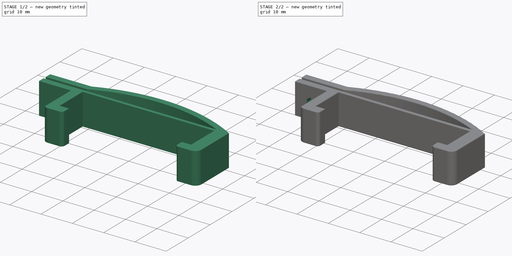
[diagram: build sequence overview — one tinted view per stage of 2, left to right]
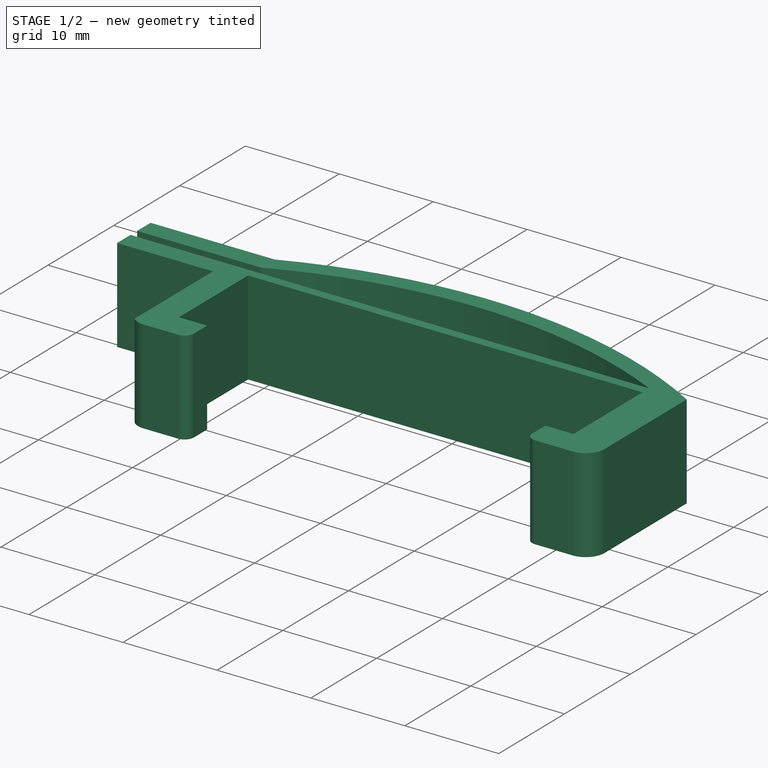
[diagram: stage 1 of 2 — iso view after this stage's code; geometry added in this stage tinted green]
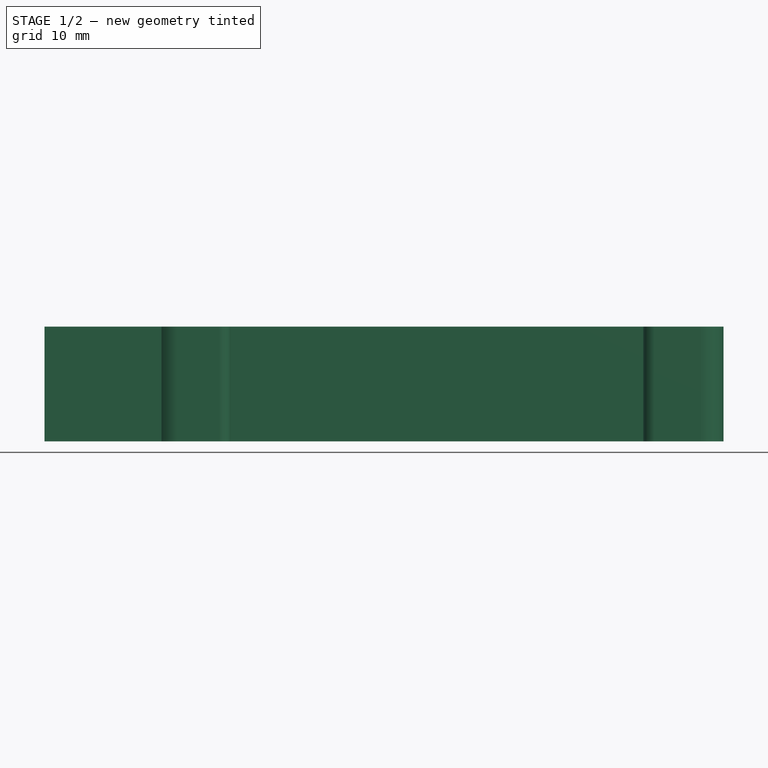
[diagram: stage 1 of 2 — front view after this stage's code; geometry added in this stage tinted green]
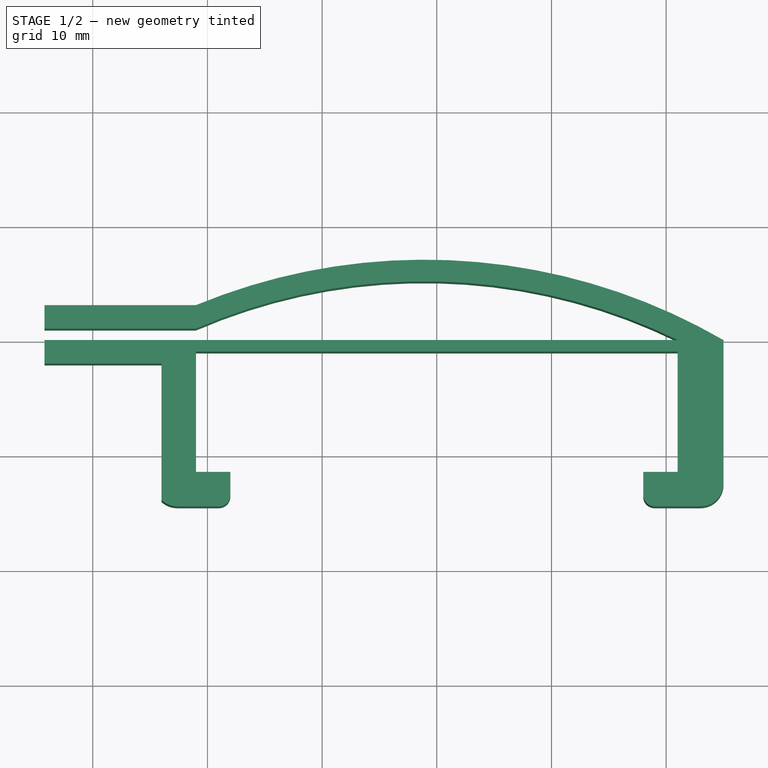
[diagram: stage 1 of 2 — top view after this stage's code; geometry added in this stage tinted green]
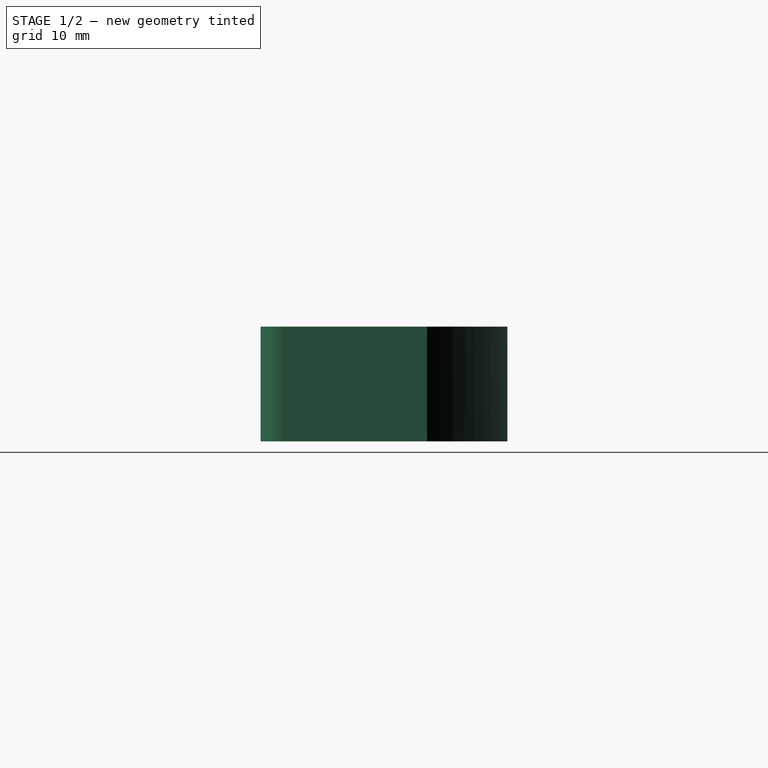
[diagram: stage 1 of 2 — right view after this stage's code; geometry added in this stage tinted green]
FCSTD DOCUMENT  (FreeCAD 0.20R27319 (Git))
Label: Friction Plate V2
License: All rights reserved
LicenseURL: http://en.wikipedia.org/wiki/All_rights_reserved
objects: Sketcher::SketchObject×3, PartDesign::Pocket×2, PartDesign::Pad×1, PartDesign::Fillet×1, PartDesign::Body×1
note: 12 computed .brp shape members not serialized (recipe doc carries the construction recipe); baked Part::Feature solids carry a one-line shape summary decoded from their .brp

FEATURE [Sketcher::SketchObject] Sketch
  FullyConstrained = false
  MapMode = 5
  Support = -> [XY_Plane]
  sketch-geometry (31):
    g0: LineSegment StartX=25 StartY=0 StartZ=0 EndX=25 EndY=-12.5 EndZ=0
    g1: LineSegment StartX=23 StartY=-14.5 StartZ=0 EndX=19 EndY=-14.5 EndZ=0
    g2: LineSegment StartX=18 StartY=-13.5 StartZ=0 EndX=18 EndY=-11.5 EndZ=0
    g3: LineSegment StartX=18 StartY=-11.5 StartZ=0 EndX=21 EndY=-11.5 EndZ=0
    g4: LineSegment StartX=21 StartY=-11.5 StartZ=0 EndX=21 EndY=-1 EndZ=0
    g5: LineSegment StartX=21 StartY=-1 StartZ=0 EndX=-21 EndY=-1 EndZ=0
    g6: LineSegment StartX=-21 StartY=-1 StartZ=0 EndX=-21 EndY=-11.5 EndZ=0
    g7: LineSegment StartX=-21 StartY=-11.5 StartZ=0 EndX=-18 EndY=-11.5 EndZ=0
    g8: LineSegment StartX=-18 StartY=-11.5 StartZ=0 EndX=-18 EndY=-13.5 EndZ=0
    g9: LineSegment StartX=-19 StartY=-14.5 StartZ=0 EndX=-22.6341 EndY=-14.5 EndZ=0
    g10: ArcOfCircle CenterX=-1.08364 CenterY=-45.013 CenterZ=0 NormalX=0 NormalY=0 NormalZ=1 AngleXU=0 Radius=52.0243 StartAngle=1.04561 EndAngle=1.96365
    g11: ArcOfCircle CenterX=-1.08364 CenterY=-45.013 CenterZ=0 NormalX=0 NormalY=0 NormalZ=1 AngleXU=0 Radius=50.1384 StartAngle=1.11469 EndAngle=1.97929
    g12: LineSegment StartX=21 StartY=0 StartZ=0 EndX=25 EndY=0 EndZ=0
    g13: LineSegment StartX=-21 StartY=0 StartZ=0 EndX=21 EndY=0 EndZ=0
    g14: LineSegment StartX=0 StartY=0 StartZ=0 EndX=0 EndY=7 EndZ=0
    g15: ArcOfCircle CenterX=-22.6341 CenterY=-12.5 CenterZ=0 NormalX=0 NormalY=0 NormalZ=1 AngleXU=0 Radius=2 StartAngle=3.96061 EndAngle=4.71239
    g16: GeomPoint X=-24.3857 Y=-14.5 Z=0
    g17: ArcOfCircle CenterX=23 CenterY=-12.5 CenterZ=0 NormalX=0 NormalY=0 NormalZ=1 AngleXU=0 Radius=2 StartAngle=4.71239 EndAngle=6.28319
    g18: GeomPoint X=25 Y=-14.5 Z=0
    g19: ArcOfCircle CenterX=-19 CenterY=-13.5 CenterZ=0 NormalX=0 NormalY=0 NormalZ=1 AngleXU=0 Radius=1 StartAngle=4.71239 EndAngle=6.28319
    g20: GeomPoint X=-18 Y=-14.5 Z=0
    g21: ArcOfCircle CenterX=19 CenterY=-13.5 CenterZ=0 NormalX=0 NormalY=0 NormalZ=1 AngleXU=0 Radius=1 StartAngle=3.14159 EndAngle=4.71239
    g22: GeomPoint X=18 Y=-14.5 Z=0
    g23: LineSegment StartX=-24 StartY=-13.9609 StartZ=0 EndX=-24 EndY=-2.04806 EndZ=0
    g24: LineSegment StartX=-24 StartY=-2.04806 StartZ=0 EndX=-34.2062 EndY=-2.04806 EndZ=0
    g25: LineSegment StartX=-34.2062 StartY=-2.04806 StartZ=0 EndX=-34.2062 EndY=0 EndZ=0
    g26: LineSegment StartX=-34.2062 StartY=0 StartZ=0 EndX=-21 EndY=0 EndZ=0
    g27: LineSegment StartX=-34.2062 StartY=3.04806 StartZ=0 EndX=-21 EndY=3.04806 EndZ=0
    g28: LineSegment StartX=-21 StartY=3.04806 StartZ=0 EndX=-21 EndY=1 EndZ=0
    g29: LineSegment StartX=-21 StartY=1 StartZ=0 EndX=-34.2062 EndY=1 EndZ=0
    g30: LineSegment StartX=-34.2062 StartY=1 StartZ=0 EndX=-34.2062 EndY=3.04806 EndZ=0
  constraints (80):
    c: Coincident(g12,g0)
    c: Horizontal(g1)
    c: Vertical(g2)
    c: Coincident(g2,g3)
    c: Coincident(g3,g4)
    c: Coincident(g4,g5)
    c: Coincident(g5,g6)
    c: Coincident(g6,g7)
    c: Horizontal(g7)
    c: Coincident(g7,g8)
    c: Vertical(g8)
    c: Vertical(g0)
    c: Horizontal(g3)
    c: Symmetric(g20,g22,g-2)
    c: Symmetric(g5,g4,g-2)
    c: Vertical(g6)
    c: Vertical(g4)
    c: Distance(g5) = 42
    c: Distance(g3) = 3
    c: DistanceX(g3,g18) = 4
    c: Distance(g6) = 10.5
    c: Distance(g8,g20) = 3
    c: Coincident(g10,g12)
    c: Coincident(g11,g10)
    c: Coincident(g12,g11)
    c: Coincident(g13,g11)
    c: Horizontal(g13)
    c: Equal(g13,g5)
    c: PointOnObject(g-1,g13)
    c: Coincident(g14,g-1)
    c: Vertical(g14)
    c: PointOnObject(g16,g9)
    c: Tangent(g9,g15) = 1.5708
    c: PointOnObject(g18,g0)
    c: PointOnObject(g18,g1)
    c: Tangent(g0,g17) = 1.5708
    c: Tangent(g1,g17) = 1.5708
    c: Equal(g15,g17)
    c: Radius(g17) = 2
    c: PointOnObject(g20,g8)
    c: PointOnObject(g20,g9)
    c: Tangent(g8,g19) = 1.5708
    c: Tangent(g9,g19) = 1.5708
    c: PointOnObject(g22,g1)
    c: PointOnObject(g22,g2)
    c: Tangent(g1,g21) = 1.5708
    c: Tangent(g2,g21) = 1.5708
    c: Equal(g19,g21)
    c: Radius(g21) = 1
    c: Coincident(g23,g15)
    c: Vertical(g23)
    c: Coincident(g23,g24)
    c: Horizontal(g24)
    c: Coincident(g24,g25)
    c: PointOnObject(g25,g-1)
    c: Vertical(g25)
    c: Coincident(g26,g25)
    c: Coincident(g26,g13)
    c: Vertical(g13,g5)
    c: Coincident(g27,g28)
    c: Coincident(g28,g29)
    c: Coincident(g29,g30)
    c: Coincident(g30,g27)
    c: Horizontal(g27)
    c: Horizontal(g29)
    c: Vertical(g28)
    c: Vertical(g30)
    c: Coincident(g27,g10)
    c: Coincident(g11,g28)
    c: DistanceY(g25,g29) = 1
    c: Horizontal(g12)
    c: Vertical(g29,g25)
    c: DistanceX(g23,g5) = 3
    c: Vertical(g11,g5)
    c: PointOnObject(g14,g10)
    c: Distance(g14) = 7
    c: DistanceY(g4,g4) = 10.5
    c: Equal(g30,g25)
    c: DistanceY(g4,g11) = 1
    c: Horizontal(g9)
FEATURE [PartDesign::Pad] Pad
  Direction = (0,0,1)
  Length = 10
  Length2 = 10
  Profile = -> Sketch
  ReferenceAxis = -> Sketch [N_Axis]
  Type = 0
FEATURE [Sketcher::SketchObject] Sketch001
  FullyConstrained = false
  MapMode = 5
  Placement = pos=(0,-11.5,0) rot=(0,0.707107,0.707107;3.14159rad)
  Support = -> [Pad]
  sketch-geometry (4):
    g0: LineSegment StartX=0 StartY=24.6117 StartZ=0 EndX=-9.11051 EndY=24.6117 EndZ=0
    g1: LineSegment StartX=-9.11051 StartY=24.6117 StartZ=0 EndX=-9.11051 EndY=7.43455 EndZ=0
    g2: LineSegment StartX=-9.11051 StartY=7.43455 StartZ=0 EndX=0 EndY=7.43455 EndZ=0
    g3: LineSegment StartX=0 StartY=7.43455 StartZ=0 EndX=0 EndY=24.6117 EndZ=0
  constraints (9):
    c: Coincident(g0,g1)
    c: Coincident(g1,g2)
    c: Coincident(g2,g3)
    c: Coincident(g3,g0)
    c: Horizontal(g0)
    c: Horizontal(g2)
    c: Vertical(g1)
    c: Vertical(g3)
    c: PointOnObject(g0,g-2)
FEATURE [PartDesign::Pocket] Pocket
  BaseFeature = -> Pad
  Direction = (0,-1,2e-16)
  Length = 5
  Length2 = 5
  Profile = -> Sketch001
  ReferenceAxis = -> Sketch001 [N_Axis]
  Type = 1
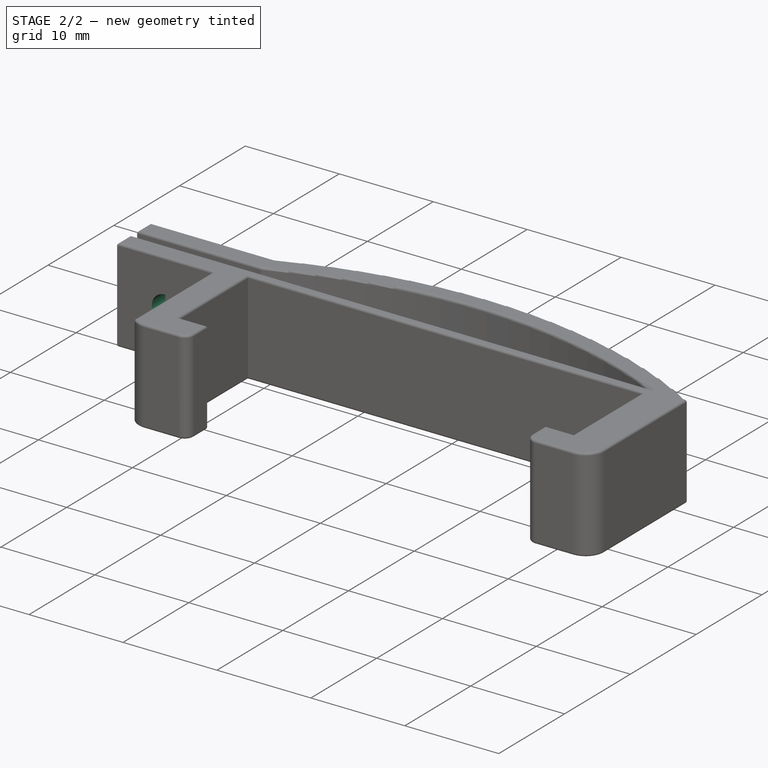
[diagram: stage 2 of 2 — iso view after this stage's code; geometry added in this stage tinted green]
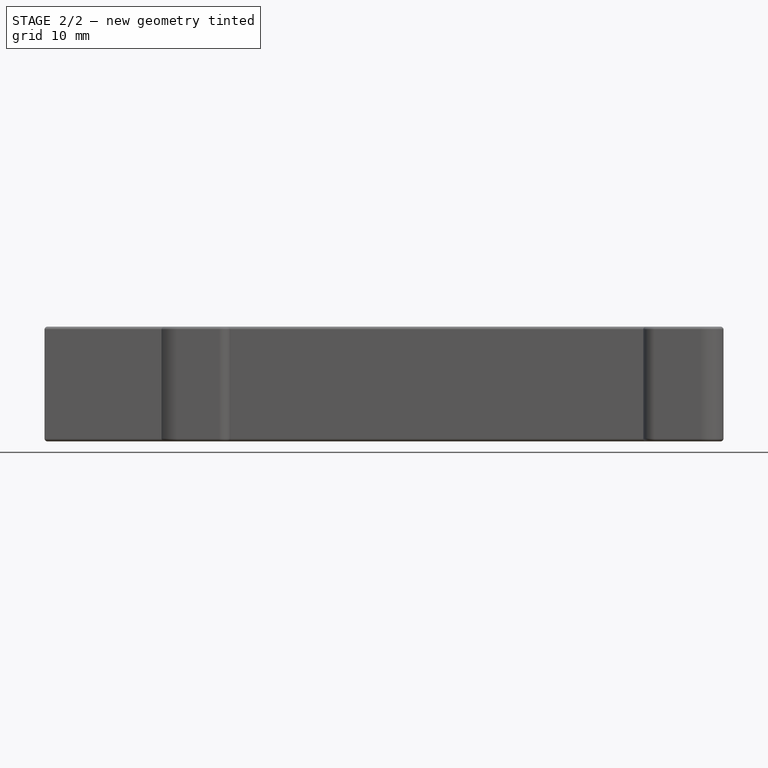
[diagram: stage 2 of 2 — front view after this stage's code; geometry added in this stage tinted green]
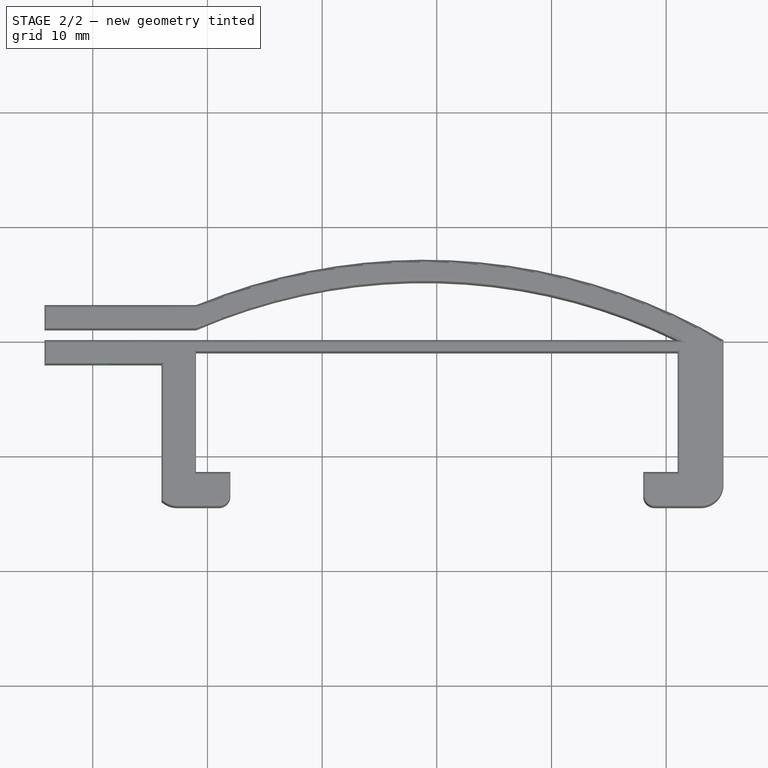
[diagram: stage 2 of 2 — top view after this stage's code; geometry added in this stage tinted green]
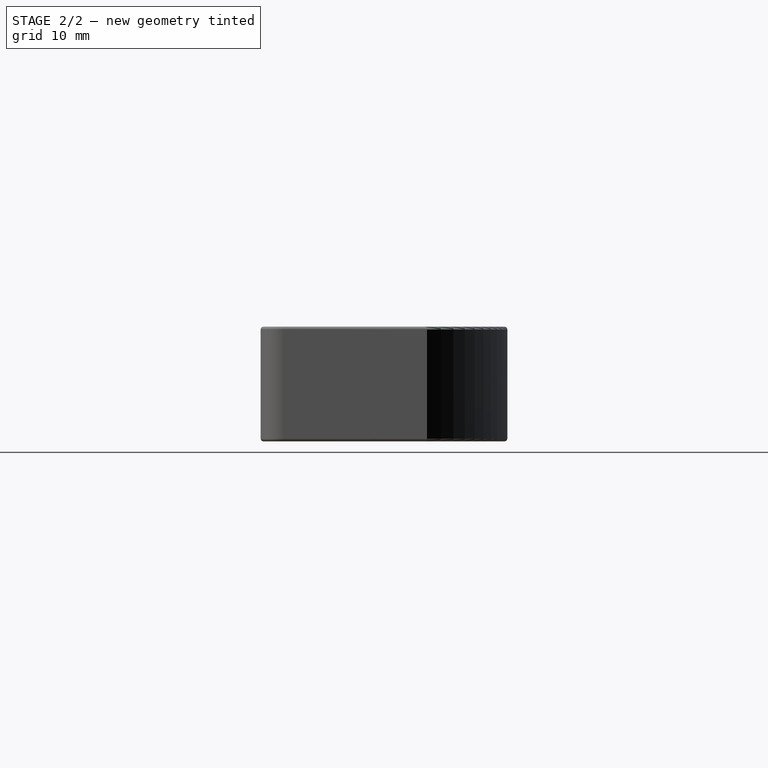
[diagram: stage 2 of 2 — right view after this stage's code; geometry added in this stage tinted green]
FEATURE [Sketcher::SketchObject] Sketch002
  ExternalGeometry = -> [Pad,Sketch]
  FullyConstrained = true
  MapMode = 5
  Placement = pos=(0,-2.04806,0) rot=(1,0,0;1.5708rad)
  Support = -> [Pad]
  sketch-geometry (5):
    g0: Circle CenterX=-29.1031 CenterY=5 CenterZ=0 NormalX=0 NormalY=0 NormalZ=1 AngleXU=0 Radius=1.4
    g1: LineSegment StartX=-29.1031 StartY=5 StartZ=0 EndX=-29.1031 EndY=10 EndZ=0
    g2: LineSegment StartX=-29.1031 StartY=5 StartZ=0 EndX=-29.1031 EndY=0 EndZ=0
    g3: LineSegment StartX=-34.2062 StartY=5 StartZ=0 EndX=-29.1031 EndY=5 EndZ=0
    g4: LineSegment StartX=-29.1031 StartY=5 StartZ=0 EndX=-24 EndY=5 EndZ=0
  constraints (15):
    c: Diameter(g0) = 2.8
    c: Coincident(g1,g0)
    c: PointOnObject(g1,g-3)
    c: Vertical(g1)
    c: Coincident(g2,g0)
    c: PointOnObject(g2,g-4)
    c: Vertical(g2)
    c: Equal(g1,g2)
    c: PointOnObject(g3,g-5)
    c: Coincident(g3,g0)
    c: Coincident(g4,g0)
    c: PointOnObject(g4,g-6)
    c: Horizontal(g4)
    c: Horizontal(g3)
    c: Equal(g4,g3)
FEATURE [PartDesign::Pocket] Pocket001
  BaseFeature = -> Pocket
  Direction = (0,1,-2e-16)
  Length = 0
  Length2 = 5
  Profile = -> Sketch002
  ReferenceAxis = -> Sketch002 [N_Axis]
  Type = 3
  UpToFace = -> Pocket [Face4]
FEATURE [PartDesign::Fillet] Fillet
  Base = -> Pocket001 [Face4,Face5]
  BaseFeature = -> Pocket001
  Radius = 0.25
  SupportTransform = false
FEATURE [PartDesign::Body] Body
  Group = -> [Sketch,Pad,Sketch001,Pocket,Sketch002,Pocket001,Fillet]
  Origin = -> Origin
  Tip = -> Fillet
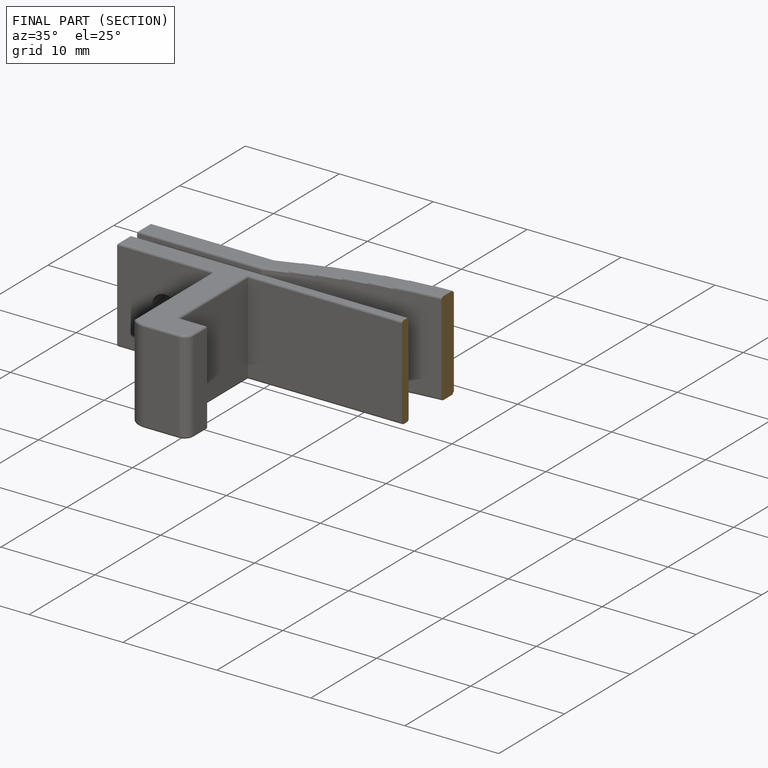
[diagram: finished part — half-section view (interior)]
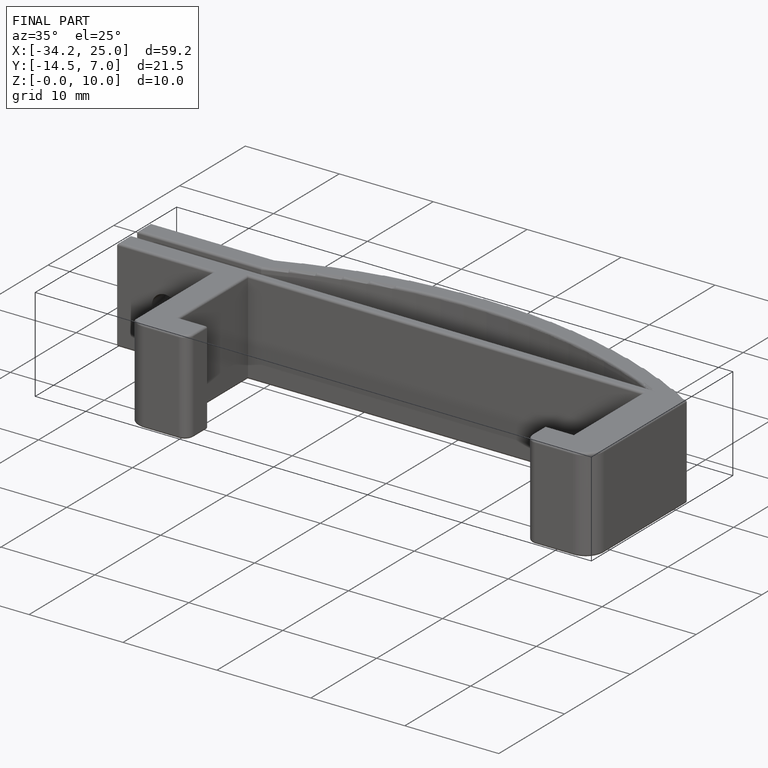
[diagram: finished part — iso view with bounding-box wireframe]
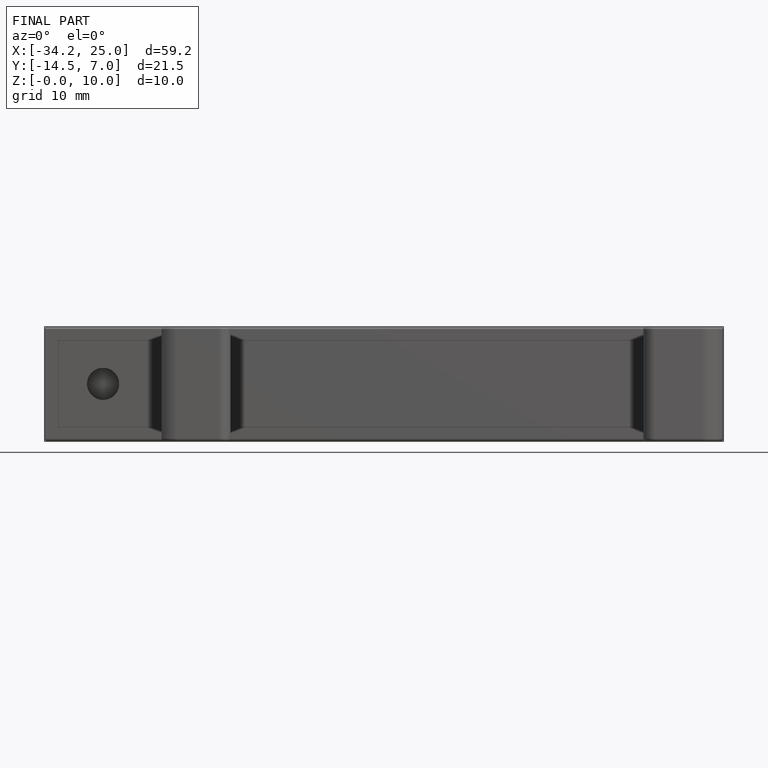
[diagram: finished part — front view with bounding-box wireframe]
